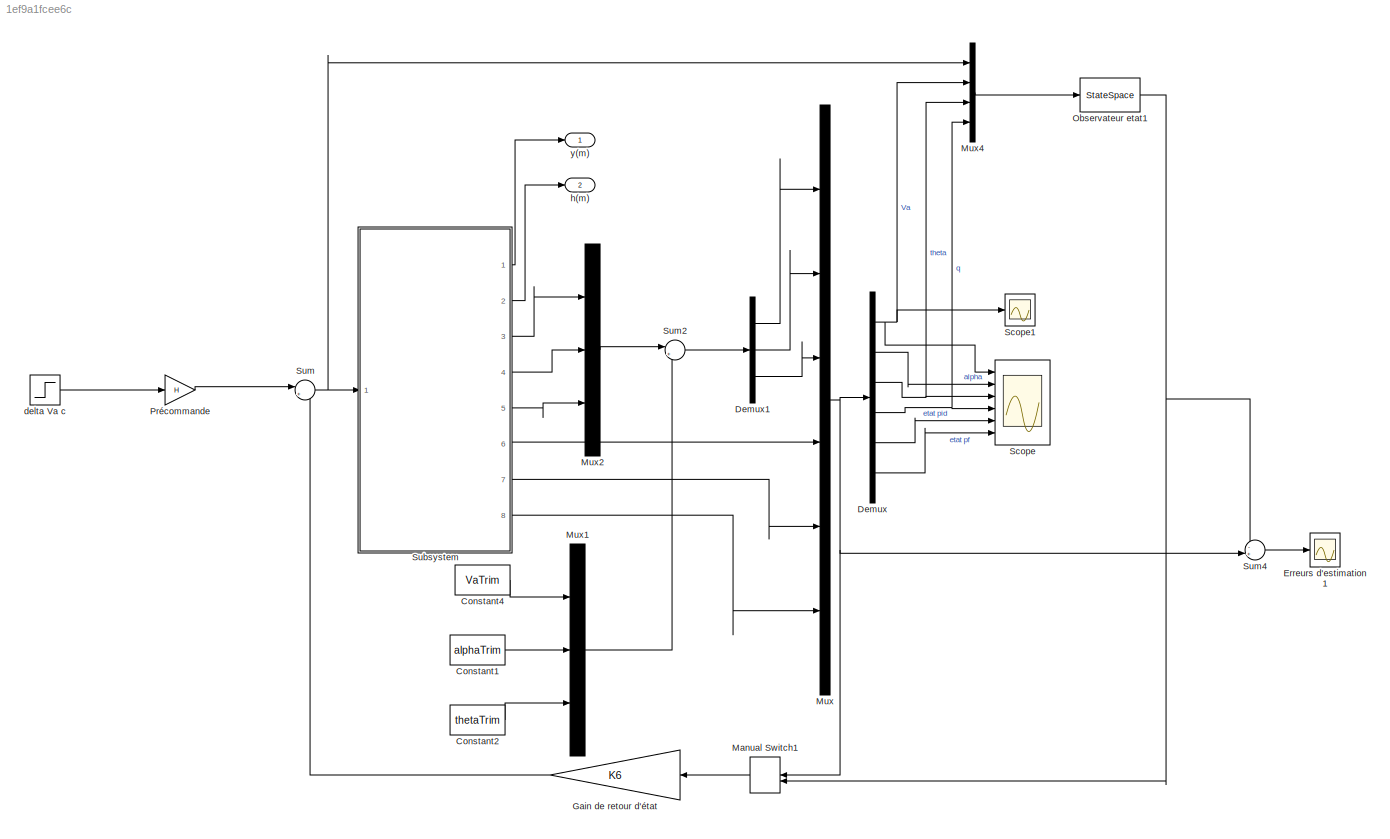
MODEL slx_1ef9a1fcee6c
KIND model
CONFIG AbsTol = auto
CONFIG EnableMultiTasking = off
CONFIG FixedStep = auto
CONFIG MaxStep = auto
CONFIG MinStep = auto
CONFIG RelTol = 1e-3
CONFIG SampleTimeConstraint = Unconstrained
CONFIG Solver = VariableStepAuto
CONFIG SolverName = VariableStepAuto
CONFIG StartTime = 0.0
CONFIG StopTime = 600
BLOCK [Constant] Constant1
  Value = alphaTrim
BLOCK [Constant] Constant2
  Value = thetaTrim
BLOCK [Constant] Constant4
  Value = VaTrim
BLOCK [Demux] Demux
  DisplayOption = bar
  Outputs = 6
  Ports = [1, 6]
BLOCK [Demux] Demux1
  DisplayOption = bar
  Outputs = 3
  Ports = [1, 3]
BLOCK [Scope] Erreurs d'estimation1
  Floating = off
  NumInputPorts = 1
  Ports = [1]
  ScopeSpecificationString = Simulink.scopes.TimeScopeBlockCfg('CurrentConfiguration', extmgr.ConfigurationSet(extmgr.Configuration('Core','General UI',true),extmgr.Configuration('Core','Source UI',true),extmgr.Configuration('Sources','WiredSimulink',true,'DataLoggingVariableName','ScopeData5'),extmgr.Configuration('Visuals','Time Domain',true,'SerializedDisplays',{struct('MinYLimReal','-1070496505886947682184016691200.00000'...<+1964ch>
BLOCK [Gain] Gain de retour d'état
  Gain = K6
  Multiplication = Matrix(K*u) (u vector)
  OutDataTypeStr = Inherit: Inherit via internal rule
  ParamDataTypeStr = Inherit: Inherit via internal rule
  SaturateOnIntegerOverflow = off
BLOCK [ManualSwitch] Manual Switch1
BLOCK [Mux] Mux
  DisplayOption = bar
  Inputs = 6
  Ports = [6, 1]
BLOCK [Mux] Mux1
  DisplayOption = bar
  Inputs = 3
  Ports = [3, 1]
BLOCK [Mux] Mux2
  DisplayOption = bar
  Inputs = 3
  Ports = [3, 1]
BLOCK [Mux] Mux4
  DisplayOption = bar
  Ports = [4, 1]
BLOCK [StateSpace] Observateur etat1
  A = A6-L6*Cobs
  B = [B6, L6]
  C = eye(6)
  D = zeros(6,4)
  InitialCondition = 0
  Ports = [1, 1]
BLOCK [Gain] Précommande
  Gain = H
  OutDataTypeStr = Inherit: Inherit via internal rule
  ParamDataTypeStr = Inherit: Inherit via internal rule
  SaturateOnIntegerOverflow = off
BLOCK [Scope] Scope
  Floating = off
  NumInputPorts = 6
  Ports = [6]
  ScopeSpecificationString = Simulink.scopes.TimeScopeBlockCfg('CurrentConfiguration', extmgr.ConfigurationSet(extmgr.Configuration('Core','General UI',true,'FigureColor',[1 1 1]),extmgr.Configuration('Core','Source UI',true),extmgr.Configuration('Sources','WiredSimulink',true,'DataLoggingVariableName','ScopeData2'),extmgr.Configuration('Visuals','Time Domain',true,'SerializedDisplays',{struct('MinYLimReal','-0.53026','MaxYLi...<+2260ch>
BLOCK [Scope] Scope1
  Floating = off
  NumInputPorts = 1
  Ports = [1]
  ScopeSpecificationString = Simulink.scopes.TimeScopeBlockCfg('CurrentConfiguration', extmgr.ConfigurationSet(extmgr.Configuration('Core','General UI',true,'FigureColor',[1 1 1]),extmgr.Configuration('Core','Source UI',true),extmgr.Configuration('Sources','WiredSimulink',true,'DataLoggingVariableName','ScopeData1'),extmgr.Configuration('Visuals','Time Domain',true,'SerializedDisplays',{struct('MinYLimReal','-31.99476','MaxYL...<+1540ch>
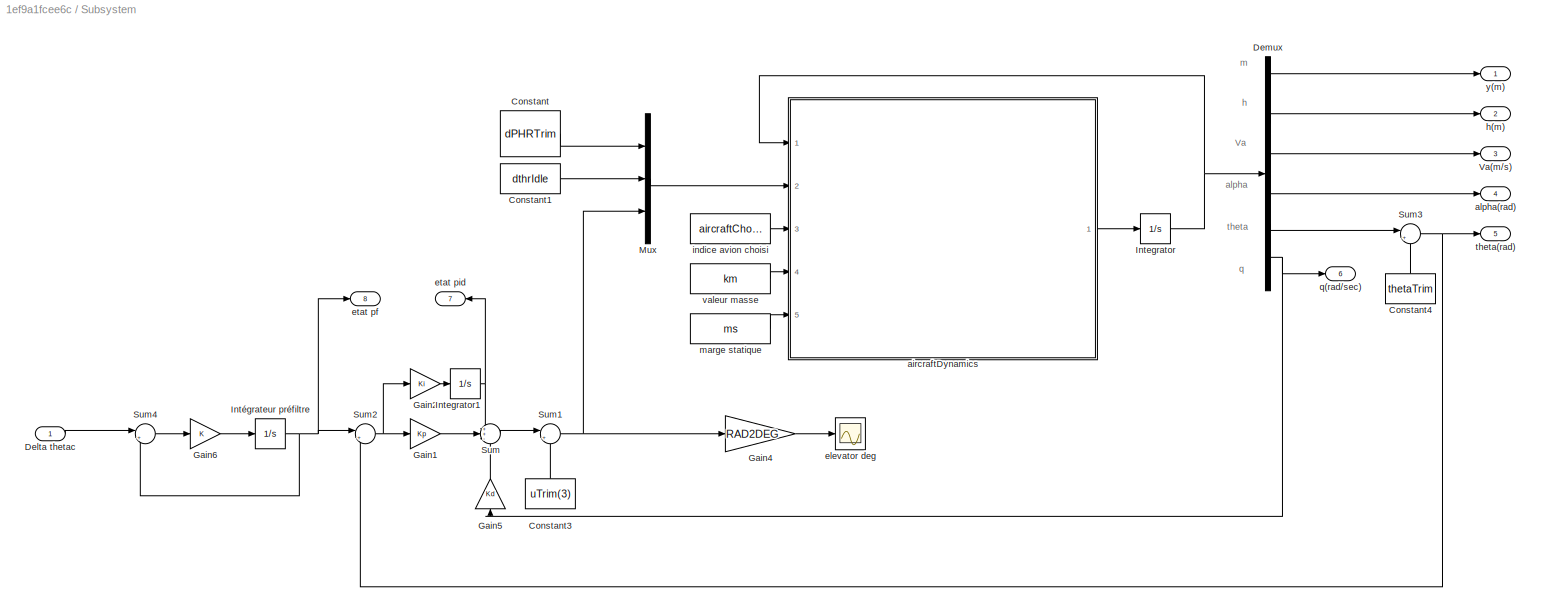
BLOCK [SubSystem] Subsystem
  Ports = [1, 8]
  RequestExecContextInheritance = off
BLOCK [Constant] Subsystem/Constant
  Value = dPHRTrim
BLOCK [Constant] Subsystem/Constant1
  Value = dthrIdle
BLOCK [Constant] Subsystem/Constant3
  Value = uTrim(3)
BLOCK [Constant] Subsystem/Constant4
  Value = thetaTrim
BLOCK [Inport] Subsystem/Delta thetac 
  IconDisplay = Port number
BLOCK [Demux] Subsystem/Demux
  DisplayOption = bar
  Outputs = 6
  Ports = [1, 6]
BLOCK [Gain] Subsystem/Gain1
  Gain = Kp
  OutDataTypeStr = Inherit: Inherit via internal rule
  ParamDataTypeStr = Inherit: Inherit via internal rule
  SaturateOnIntegerOverflow = off
BLOCK [Gain] Subsystem/Gain2
  Gain = Ki
  OutDataTypeStr = Inherit: Inherit via internal rule
  ParamDataTypeStr = Inherit: Inherit via internal rule
  SaturateOnIntegerOverflow = off
BLOCK [Gain] Subsystem/Gain4
  Gain = RAD2DEG
  OutDataTypeStr = Inherit: Inherit via internal rule
  ParamDataTypeStr = Inherit: Inherit via internal rule
  SaturateOnIntegerOverflow = off
BLOCK [Gain] Subsystem/Gain5
  Gain = Kd
  OutDataTypeStr = Inherit: Inherit via internal rule
  ParamDataTypeStr = Inherit: Inherit via internal rule
  SaturateOnIntegerOverflow = off
BLOCK [Gain] Subsystem/Gain6
  OutDataTypeStr = Inherit: Inherit via internal rule
  ParamDataTypeStr = Inherit: Inherit via internal rule
  SaturateOnIntegerOverflow = off
BLOCK [Integrator] Subsystem/Integrator
  InitialCondition = xTrim
  Ports = [1, 1]
BLOCK [Integrator] Subsystem/Integrator1
  Ports = [1, 1]
BLOCK [Integrator] Subsystem/Intégrateur préfiltre
  Ports = [1, 1]
BLOCK [Mux] Subsystem/Mux
  DisplayOption = bar
  Inputs = 3
  Ports = [3, 1]
BLOCK [Sum] Subsystem/Sum
  IconShape = round
  InputSameDT = off
  Inputs = ++-
  OutDataTypeStr = Inherit: Inherit via internal rule
  Ports = [3, 1]
  SaturateOnIntegerOverflow = off
BLOCK [Sum] Subsystem/Sum1
  IconShape = round
  InputSameDT = off
  Inputs = |++
  OutDataTypeStr = Inherit: Inherit via internal rule
  Ports = [2, 1]
  SaturateOnIntegerOverflow = off
BLOCK [Sum] Subsystem/Sum2
  IconShape = round
  InputSameDT = off
  Inputs = |+-
  OutDataTypeStr = Inherit: Inherit via internal rule
  Ports = [2, 1]
  SaturateOnIntegerOverflow = off
BLOCK [Sum] Subsystem/Sum3
  IconShape = round
  InputSameDT = off
  Inputs = |+-
  OutDataTypeStr = Inherit: Inherit via internal rule
  Ports = [2, 1]
  SaturateOnIntegerOverflow = off
BLOCK [Sum] Subsystem/Sum4
  IconShape = round
  InputSameDT = off
  Inputs = |+-
  OutDataTypeStr = Inherit: Inherit via internal rule
  Ports = [2, 1]
  SaturateOnIntegerOverflow = off
BLOCK [Outport] Subsystem/Va(m//s)
  IconDisplay = Port number
  Port = 3
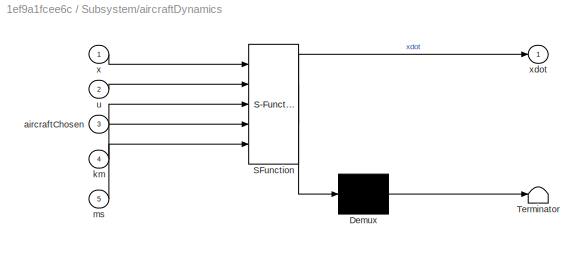
BLOCK [SubSystem] Subsystem/aircraftDynamics
  ErrorFcn = Stateflow.Translate.translate
  PermitHierarchicalResolution = ExplicitOnly
  Ports = [5, 1]
  RequestExecContextInheritance = off
  SFBlockType = MATLAB Function
  TreatAsAtomicUnit = on
BLOCK [Demux] Subsystem/aircraftDynamics/ Demux 
  Outputs = 1
  Ports = [1, 1]
BLOCK [S-Function] Subsystem/aircraftDynamics/ SFunction 
  EnableBusSupport = on
  FunctionName = sf_sfun
  PortCounts = [5 2]
  Ports = [5, 2]
  SFcnIsStateOwnerBlock = off
  SFunctionDeploymentMode = off
  Tag = Stateflow S-Function acDynModelGolfTenueModale1 2
BLOCK [Terminator] Subsystem/aircraftDynamics/ Terminator 
BLOCK [Inport] Subsystem/aircraftDynamics/aircraftChosen
  IconDisplay = Port number
  Port = 3
BLOCK [Inport] Subsystem/aircraftDynamics/km
  IconDisplay = Port number
  Port = 4
BLOCK [Inport] Subsystem/aircraftDynamics/ms
  IconDisplay = Port number
  Port = 5
BLOCK [Inport] Subsystem/aircraftDynamics/u
  IconDisplay = Port number
  Port = 2
BLOCK [Inport] Subsystem/aircraftDynamics/x
  IconDisplay = Port number
BLOCK [Outport] Subsystem/aircraftDynamics/xdot
  IconDisplay = Port number
BLOCK [Outport] Subsystem/alpha(rad)
  IconDisplay = Port number
  Port = 4
BLOCK [Scope] Subsystem/elevator deg
  Floating = off
  NumInputPorts = 1
  Ports = [1]
  ScopeSpecificationString = Simulink.scopes.TimeScopeBlockCfg('CurrentConfiguration', extmgr.ConfigurationSet(extmgr.Configuration('Core','General UI',true),extmgr.Configuration('Core','Source UI',true),extmgr.Configuration('Sources','WiredSimulink',true,'DataLoggingVariableName','ScopeData1'),extmgr.Configuration('Visuals','Time Domain',true,'SerializedDisplays',{struct('MinYLimReal','-18.11832','MaxYLimReal','67.77298','YL...<+1445ch>
BLOCK [Outport] Subsystem/etat pf 
  IconDisplay = Port number
  Port = 8
BLOCK [Outport] Subsystem/etat pid
  IconDisplay = Port number
  Port = 7
BLOCK [Outport] Subsystem/h(m)
  IconDisplay = Port number
  Port = 2
BLOCK [Constant] Subsystem/indice avion choisi
  Value = aircraftChosen
BLOCK [Constant] Subsystem/marge statique
  Value = ms
BLOCK [Outport] Subsystem/q(rad//sec)
  IconDisplay = Port number
  Port = 6
BLOCK [Outport] Subsystem/theta(rad)
  IconDisplay = Port number
  Port = 5
BLOCK [Constant] Subsystem/valeur masse
  Value = km
BLOCK [Outport] Subsystem/y(m)
  IconDisplay = Port number
BLOCK [Sum] Sum
  IconShape = round
  InputSameDT = off
  Inputs = |+-
  OutDataTypeStr = Inherit: Inherit via internal rule
  Ports = [2, 1]
  SaturateOnIntegerOverflow = off
BLOCK [Sum] Sum2
  IconShape = round
  InputSameDT = off
  Inputs = |+-
  OutDataTypeStr = Inherit: Inherit via internal rule
  Ports = [2, 1]
  SaturateOnIntegerOverflow = off
BLOCK [Sum] Sum4
  IconShape = round
  InputSameDT = off
  Inputs = -+|
  OutDataTypeStr = Inherit: Inherit via internal rule
  Ports = [2, 1]
  SaturateOnIntegerOverflow = off
BLOCK [Step] delta Va c
  SampleTime = 0
BLOCK [Outport] h(m)
  IconDisplay = Port number
  Port = 2
BLOCK [Outport] y(m)
  IconDisplay = Port number
ANNOTATION Subsystem: Va
ANNOTATION Subsystem: alpha
ANNOTATION Subsystem: h
ANNOTATION Subsystem: m
ANNOTATION Subsystem: q
ANNOTATION Subsystem: theta
LINE Constant1:1 -> Mux1:2
LINE Constant2:1 -> Mux1:3
LINE Constant4:1 -> Mux1:1
LINE Demux1:1 -> Mux:1
LINE Demux1:2 -> Mux:2
LINE Demux1:3 -> Mux:3
NET Demux:1 -> Mux4:2, Scope1:1, Scope:1
LINE Demux:2 -> Scope:2
NET Demux:3 -> Mux4:3, Scope:3
NET Demux:4 -> Mux4:4, Scope:4
LINE Demux:5 -> Scope:5
LINE Demux:6 -> Scope:6
LINE Gain de retour d'état:1 -> Sum:2
LINE Manual Switch1:1 -> Gain de retour d'état:1
LINE Mux1:1 -> Sum2:2
LINE Mux2:1 -> Sum2:1
LINE Mux4:1 -> Observateur etat1:1
NET Mux:1 -> Demux:1, Manual Switch1:1, Sum4:2
NET Observateur etat1:1 -> Manual Switch1:2, Sum4:1
LINE Précommande:1 -> Sum:1
LINE Subsystem/Constant1:1 -> Subsystem/Mux:2
LINE Subsystem/Constant3:1 -> Subsystem/Sum1:2
LINE Subsystem/Constant4:1 -> Subsystem/Sum3:2
LINE Subsystem/Constant:1 -> Subsystem/Mux:1
LINE Subsystem/Delta thetac :1 -> Subsystem/Sum4:1
LINE Subsystem/Demux:1 -> Subsystem/y(m):1
LINE Subsystem/Demux:2 -> Subsystem/h(m):1
LINE Subsystem/Demux:3 -> Subsystem/Va(m//s):1
LINE Subsystem/Demux:4 -> Subsystem/alpha(rad):1
LINE Subsystem/Demux:5 -> Subsystem/Sum3:1
NET Subsystem/Demux:6 -> Subsystem/Gain5:1, Subsystem/q(rad//sec):1
LINE Subsystem/Gain1:1 -> Subsystem/Sum:2
LINE Subsystem/Gain2:1 -> Subsystem/Integrator1:1
LINE Subsystem/Gain4:1 -> Subsystem/elevator deg:1
LINE Subsystem/Gain5:1 -> Subsystem/Sum:3
LINE Subsystem/Gain6:1 -> Subsystem/Intégrateur préfiltre:1
NET Subsystem/Integrator1:1 -> Subsystem/Sum:1, Subsystem/etat pid:1
NET Subsystem/Integrator:1 -> Subsystem/Demux:1, Subsystem/aircraftDynamics:1
NET Subsystem/Intégrateur préfiltre:1 -> Subsystem/Sum2:1, Subsystem/Sum4:2, Subsystem/etat pf :1
LINE Subsystem/Mux:1 -> Subsystem/aircraftDynamics:2
NET Subsystem/Sum1:1 -> Subsystem/Gain4:1, Subsystem/Mux:3
NET Subsystem/Sum2:1 -> Subsystem/Gain1:1, Subsystem/Gain2:1
NET Subsystem/Sum3:1 -> Subsystem/Sum2:2, Subsystem/theta(rad):1
LINE Subsystem/Sum4:1 -> Subsystem/Gain6:1
LINE Subsystem/Sum:1 -> Subsystem/Sum1:1
LINE Subsystem/aircraftDynamics:1 -> Subsystem/Integrator:1
LINE Subsystem/indice avion choisi:1 -> Subsystem/aircraftDynamics:3
LINE Subsystem/marge statique:1 -> Subsystem/aircraftDynamics:5
LINE Subsystem/valeur masse:1 -> Subsystem/aircraftDynamics:4
LINE Subsystem:1 -> y(m):1
LINE Subsystem:2 -> h(m):1
LINE Subsystem:3 -> Mux2:1
LINE Subsystem:4 -> Mux2:2
LINE Subsystem:5 -> Mux2:3
LINE Subsystem:6 -> Mux:4
LINE Subsystem:7 -> Mux:5
LINE Subsystem:8 -> Mux:6
LINE Sum2:1 -> Demux1:1
LINE Sum4:1 -> Erreurs d'estimation1:1
NET Sum:1 -> Mux4:1, Subsystem:1
LINE delta Va c:1 -> Précommande:1
note: NET lines group one-source signal fan-out (src -> all destinations, sorted); 1:1 wires keep LINE
CHART Subsystem/aircraftDynamics states=1 transitions=1
  STATE_LABEL 'eML_blk_kernel()'
  STATE_LABEL 'SCRIPT:\nfunction xdot = aircraftDynamics(x,u, aircraftChosen,km,ms)\n    TOTAL_SV = 6;\n    xIn = zeros(TOTAL_SV,1);\n    xIn = x;\n    \n\tTOTAL_CMD = 3;\n    uIn = zeros(TOTAL_CMD,1);\n    uIn = u;\n    \n    xdot = utAcDynamicsFunction(xIn,uIn, aircraftChosen,km,ms);\nend %aircraftDynamics\n\n'
